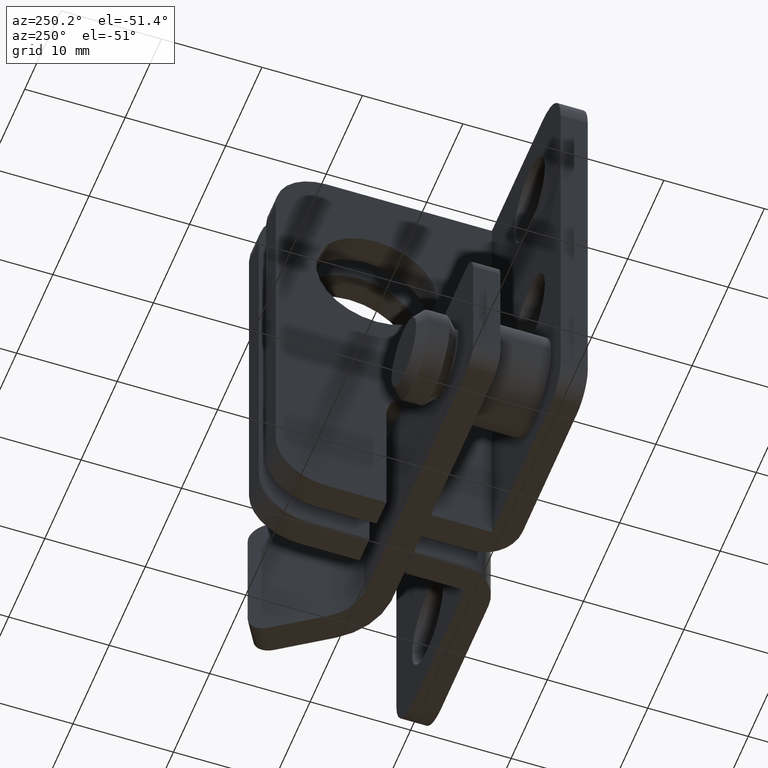
[diagram: clean part render]
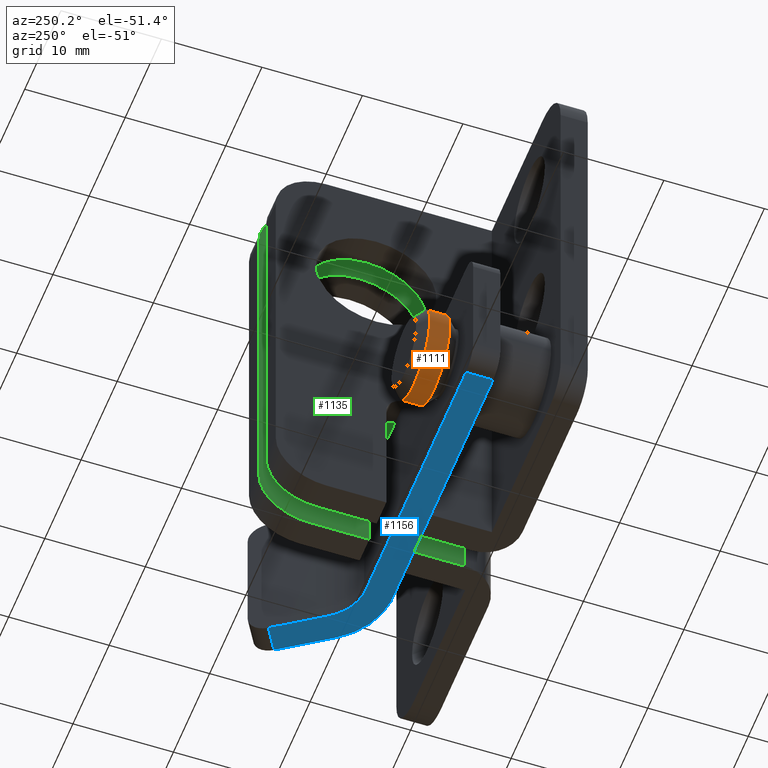
[diagram: same view with three faces highlighted in distinct colors, each labeled with its STEP entity id]
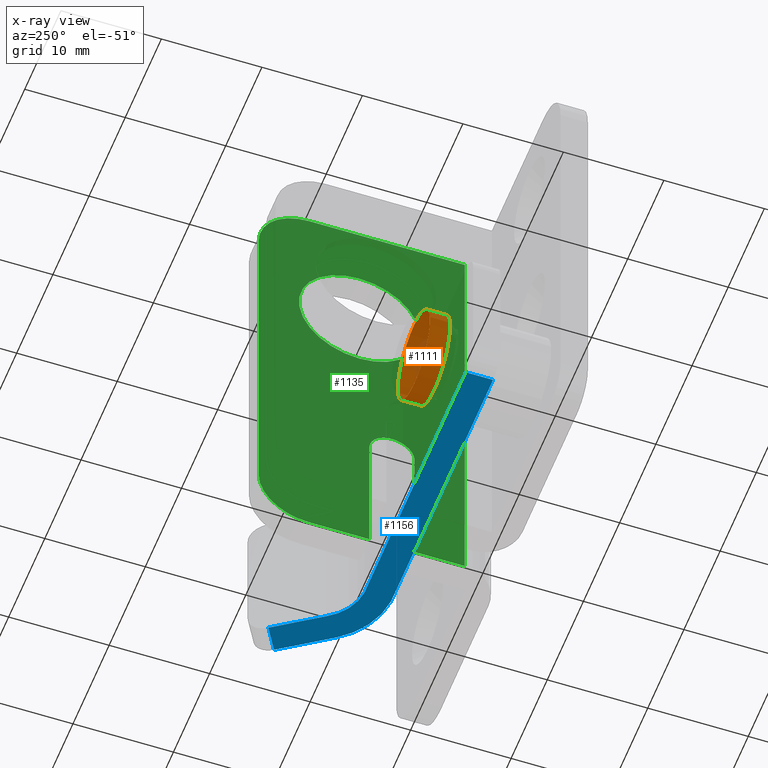
[diagram: x-ray of the same camera — body ghosted, the three highlighted faces saturated]
A machine part, auxiliary view with three faces highlighted in distinct colors.
The next image is the same camera in x-ray (body ghosted, the three faces saturated) — at least one of them is partly hidden behind the body in this view.
Their STEP definitions:

[orange] entity #1111 — the highlighted cylindrical surface (bore or boss wall) has radius 4.4 mm, axis along (0, -1, 0).
#52=FACE_BOUND('',#194,.T.);
#120=FACE_OUTER_BOUND('',#193,.T.);
#193=EDGE_LOOP('',(#809));
#194=EDGE_LOOP('',(#810));
#466=CIRCLE('',#1194,4.4);
#467=CIRCLE('',#1196,4.4);
#534=VERTEX_POINT('',#1725);
#535=VERTEX_POINT('',#1728);
#647=EDGE_CURVE('',#534,#534,#466,.T.);
#648=EDGE_CURVE('',#535,#535,#467,.T.);
#809=ORIENTED_EDGE('',*,*,#648,.F.);
#810=ORIENTED_EDGE('',*,*,#647,.F.);
#1076=CYLINDRICAL_SURFACE('',#1195,4.4);
#1111=ADVANCED_FACE('',(#120,#52),#1076,.T.);
#1194=AXIS2_PLACEMENT_3D('',#1726,#1368,#1369);
#1195=AXIS2_PLACEMENT_3D('',#1727,#1370,#1371);
#1196=AXIS2_PLACEMENT_3D('',#1729,#1372,#1373);
#1368=DIRECTION('center_axis',(0.,1.,-6.88510402868314E-16));
#1369=DIRECTION('ref_axis',(0.,-6.88510402868314E-16,-1.));
#1370=DIRECTION('center_axis',(0.,-1.,6.88510402868314E-16));
#1371=DIRECTION('ref_axis',(0.,6.88510402868314E-16,1.));
#1372=DIRECTION('center_axis',(0.,-1.,6.88510402868314E-16));
#1373=DIRECTION('ref_axis',(0.,-6.88510402868314E-16,-1.));
#1725=CARTESIAN_POINT('',(7.5,14.6,-32.8));
#1726=CARTESIAN_POINT('Origin',(7.5,14.6,-37.2));
#1727=CARTESIAN_POINT('Origin',(7.5,13.6,-37.2));
#1728=CARTESIAN_POINT('',(7.5,12.6,-32.8));
#1729=CARTESIAN_POINT('Origin',(7.5,12.6,-37.2));

[blue] entity #1156 — the highlighted planar face has unit normal (0, -0, 1).
#103=PLANE('',#1281);
#165=FACE_OUTER_BOUND('',#261,.T.);
#261=EDGE_LOOP('',(#1016,#1017,#1018,#1019,#1020,#1021,#1022,#1023));
#346=LINE('',#1937,#436);
#347=LINE('',#1941,#437);
#348=LINE('',#1947,#438);
#349=LINE('',#1949,#439);
#350=LINE('',#1951,#440);
#351=LINE('',#1954,#441);
#436=VECTOR('',#1594,5.99949013200361);
#437=VECTOR('',#1599,2.7096863287104);
#438=VECTOR('',#1606,28.2);
#439=VECTOR('',#1607,2.7);
#440=VECTOR('',#1608,28.0910992921222);
#441=VECTOR('',#1611,5.61319085248344);
#502=CIRCLE('',#1282,7.69999999999999);
#503=CIRCLE('',#1283,5.00000000000002);
#602=VERTEX_POINT('',#1934);
#603=VERTEX_POINT('',#1936);
#604=VERTEX_POINT('',#1940);
#605=VERTEX_POINT('',#1944);
#606=VERTEX_POINT('',#1946);
#607=VERTEX_POINT('',#1948);
#608=VERTEX_POINT('',#1950);
#609=VERTEX_POINT('',#1952);
#743=EDGE_CURVE('',#603,#602,#346,.T.);
#745=EDGE_CURVE('',#603,#604,#347,.T.);
#747=EDGE_CURVE('',#602,#605,#502,.T.);
#748=EDGE_CURVE('',#605,#606,#348,.T.);
#749=EDGE_CURVE('',#607,#606,#349,.T.);
#750=EDGE_CURVE('',#607,#608,#350,.T.);
#751=EDGE_CURVE('',#608,#609,#503,.T.);
#752=EDGE_CURVE('',#609,#604,#351,.T.);
#1016=ORIENTED_EDGE('',*,*,#745,.F.);
#1017=ORIENTED_EDGE('',*,*,#743,.T.);
#1018=ORIENTED_EDGE('',*,*,#747,.T.);
#1019=ORIENTED_EDGE('',*,*,#748,.T.);
#1020=ORIENTED_EDGE('',*,*,#749,.F.);
#1021=ORIENTED_EDGE('',*,*,#750,.T.);
#1022=ORIENTED_EDGE('',*,*,#751,.T.);
#1023=ORIENTED_EDGE('',*,*,#752,.T.);
#1156=ADVANCED_FACE('',(#165),#103,.F.);
#1281=AXIS2_PLACEMENT_3D('',#1943,#1602,#1603);
#1282=AXIS2_PLACEMENT_3D('',#1945,#1604,#1605);
#1283=AXIS2_PLACEMENT_3D('',#1953,#1609,#1610);
#1594=DIRECTION('',(-0.559794073334461,-0.828631761073405,0.));
#1599=DIRECTION('',(-0.856187661065607,0.516664967884417,0.));
#1602=DIRECTION('center_axis',(0.,0.,1.));
#1603=DIRECTION('ref_axis',(1.,0.,0.));
#1604=DIRECTION('center_axis',(0.,0.,-1.));
#1605=DIRECTION('ref_axis',(0.0727272727272729,-0.997351865592907,0.));
#1606=DIRECTION('',(-1.,0.,0.));
#1607=DIRECTION('',(3.06161699786838E-16,-1.,0.));
#1608=DIRECTION('',(1.,1.29133886019423E-16,0.));
#1609=DIRECTION('center_axis',(0.,0.,1.));
#1610=DIRECTION('ref_axis',(-0.0902198584244346,0.995921873013077,0.));
#1611=DIRECTION('',(0.559794073334461,0.828631761073405,0.));
#1934=CARTESIAN_POINT('',(36.0204645602652,3.36919500039002,-15.5));
#1936=CARTESIAN_POINT('',(39.3789435791894,8.34056307401468,-15.5));
#1937=CARTESIAN_POINT('',(36.0204645602652,3.36919500039002,-15.5));
#1940=CARTESIAN_POINT('',(37.0589435791894,9.74056307401468,-15.5));
#1941=CARTESIAN_POINT('',(32.7272244328156,12.3545315244127,-15.5));
#1943=CARTESIAN_POINT('Origin',(20.9134016220032,2.76789904509888,-15.5));
#1944=CARTESIAN_POINT('',(30.2,0.,-15.5));
#1945=CARTESIAN_POINT('Origin',(29.64,7.67960936506538,-15.5));
#1946=CARTESIAN_POINT('',(2.,0.,-15.5));
#1947=CARTESIAN_POINT('',(0.,0.,-15.5));
#1948=CARTESIAN_POINT('',(2.,2.7,-15.5));
#1949=CARTESIAN_POINT('',(2.,1.38394952254944,-15.5));
#1950=CARTESIAN_POINT('',(30.0910992921222,2.7,-15.5));
#1951=CARTESIAN_POINT('',(30.0910992921222,2.7,-15.5));
#1952=CARTESIAN_POINT('',(33.916712607474,5.0892948526802,-15.5));
#1953=CARTESIAN_POINT('Origin',(29.64,7.6796093650654,-15.5));
#1954=CARTESIAN_POINT('',(38.18,11.4,-15.5));

[green] entity #1135 — the highlighted planar face has unit normal (-1, -0, 0).
#64=FACE_BOUND('',#230,.T.);
#94=PLANE('',#1238);
#144=FACE_OUTER_BOUND('',#229,.T.);
#229=EDGE_LOOP('',(#915,#916,#917,#918,#919,#920,#921,#922,#923,#924));
#230=EDGE_LOOP('',(#925));
#306=LINE('',#1800,#396);
#311=LINE('',#1814,#401);
#318=LINE('',#1834,#408);
#319=LINE('',#1837,#409);
#322=LINE('',#1843,#412);
#323=LINE('',#1845,#413);
#324=LINE('',#1849,#414);
#396=VECTOR('',#1454,13.75);
#401=VECTOR('',#1467,13.75);
#408=VECTOR('',#1484,5.);
#409=VECTOR('',#1487,6.);
#412=VECTOR('',#1492,45.2);
#413=VECTOR('',#1493,15.5);
#414=VECTOR('',#1496,35.2);
#480=CIRCLE('',#1229,2.25);
#482=CIRCLE('',#1233,6.);
#485=CIRCLE('',#1239,5.);
#486=CIRCLE('',#1240,5.);
#555=VERTEX_POINT('',#1798);
#556=VERTEX_POINT('',#1799);
#559=VERTEX_POINT('',#1807);
#561=VERTEX_POINT('',#1813);
#563=VERTEX_POINT('',#1819);
#569=VERTEX_POINT('',#1832);
#570=VERTEX_POINT('',#1836);
#572=VERTEX_POINT('',#1842);
#573=VERTEX_POINT('',#1844);
#574=VERTEX_POINT('',#1846);
#575=VERTEX_POINT('',#1848);
#679=EDGE_CURVE('',#555,#556,#306,.T.);
#683=EDGE_CURVE('',#556,#559,#480,.T.);
#686=EDGE_CURVE('',#559,#561,#311,.T.);
#689=EDGE_CURVE('',#563,#563,#482,.T.);
#696=EDGE_CURVE('',#569,#561,#318,.T.);
#697=EDGE_CURVE('',#555,#570,#319,.T.);
#700=EDGE_CURVE('',#572,#569,#322,.T.);
#701=EDGE_CURVE('',#573,#572,#323,.T.);
#702=EDGE_CURVE('',#574,#573,#485,.T.);
#703=EDGE_CURVE('',#574,#575,#324,.T.);
#704=EDGE_CURVE('',#570,#575,#486,.T.);
#915=ORIENTED_EDGE('',*,*,#679,.T.);
#916=ORIENTED_EDGE('',*,*,#683,.T.);
#917=ORIENTED_EDGE('',*,*,#686,.T.);
#918=ORIENTED_EDGE('',*,*,#696,.F.);
#919=ORIENTED_EDGE('',*,*,#700,.F.);
#920=ORIENTED_EDGE('',*,*,#701,.F.);
#921=ORIENTED_EDGE('',*,*,#702,.F.);
#922=ORIENTED_EDGE('',*,*,#703,.T.);
#923=ORIENTED_EDGE('',*,*,#704,.F.);
#924=ORIENTED_EDGE('',*,*,#697,.F.);
#925=ORIENTED_EDGE('',*,*,#689,.T.);
#1135=ADVANCED_FACE('',(#144,#64),#94,.T.);
#1229=AXIS2_PLACEMENT_3D('',#1808,#1460,#1461);
#1233=AXIS2_PLACEMENT_3D('',#1820,#1472,#1473);
#1238=AXIS2_PLACEMENT_3D('',#1841,#1490,#1491);
#1239=AXIS2_PLACEMENT_3D('',#1847,#1494,#1495);
#1240=AXIS2_PLACEMENT_3D('',#1850,#1497,#1498);
#1454=DIRECTION('',(0.,0.,1.));
#1460=DIRECTION('center_axis',(1.,7.9602041944578E-16,0.));
#1461=DIRECTION('ref_axis',(-3.70074341541719E-16,1.,0.));
#1467=DIRECTION('',(-1.28546937853161E-31,1.61486985400023E-16,-1.));
#1472=DIRECTION('center_axis',(1.,7.9602041944578E-16,0.));
#1473=DIRECTION('ref_axis',(0.,0.,1.));
#1484=DIRECTION('',(-7.9602041944578E-16,1.,0.));
#1487=DIRECTION('',(-7.9602041944578E-16,1.,0.));
#1490=DIRECTION('center_axis',(-1.,-7.9602041944578E-16,0.));
#1491=DIRECTION('ref_axis',(-7.9602041944578E-16,1.,0.));
#1492=DIRECTION('',(0.,0.,-1.));
#1493=DIRECTION('',(7.9602041944578E-16,-1.,0.));
#1494=DIRECTION('center_axis',(1.,7.9602041944578E-16,0.));
#1495=DIRECTION('ref_axis',(0.,0.707106781186547,0.707106781186547));
#1496=DIRECTION('',(0.,0.,-1.));
#1497=DIRECTION('center_axis',(1.,7.9602041944578E-16,0.));
#1498=DIRECTION('ref_axis',(0.,0.707106781186547,-0.707106781186547));
#1798=CARTESIAN_POINT('',(-1.0547118733939E-14,13.2,-45.2));
#1799=CARTESIAN_POINT('',(-1.0547118733939E-14,13.2,-31.45));
#1800=CARTESIAN_POINT('',(-1.0547118733939E-14,13.2,-15.725));
#1807=CARTESIAN_POINT('',(-6.66133814775094E-15,8.7,-31.45));
#1808=CARTESIAN_POINT('Origin',(-3.88578058618805E-15,10.95,-31.45));
#1813=CARTESIAN_POINT('',(-6.66133814775094E-15,8.7,-45.2));
#1814=CARTESIAN_POINT('',(-6.93889390390723E-15,8.7,-22.6));
#1819=CARTESIAN_POINT('',(-1.0547118733939E-14,14.2,-18.5));
#1820=CARTESIAN_POINT('Origin',(-1.0547118733939E-14,14.2,-12.5));
#1832=CARTESIAN_POINT('',(-2.94527555194938E-15,3.7,-45.2));
#1834=CARTESIAN_POINT('',(-1.92636941505879E-14,24.2,-45.2));
#1836=CARTESIAN_POINT('',(-1.5283592053359E-14,19.2,-45.2));
#1837=CARTESIAN_POINT('',(-1.92636941505879E-14,24.2,-45.2));
#1841=CARTESIAN_POINT('Origin',(0.,0.,0.));
#1842=CARTESIAN_POINT('',(-2.94527555194938E-15,3.7,0.));
#1843=CARTESIAN_POINT('',(-2.77555756156289E-15,3.7,0.));
#1844=CARTESIAN_POINT('',(-1.5283592053359E-14,19.2,0.));
#1845=CARTESIAN_POINT('',(-1.92636941505879E-14,24.2,0.));
#1846=CARTESIAN_POINT('',(-1.92636941505879E-14,24.2,-5.));
#1847=CARTESIAN_POINT('Origin',(0.,19.2,-5.));
#1848=CARTESIAN_POINT('',(-1.92636941505879E-14,24.2,-40.2));
#1849=CARTESIAN_POINT('',(-1.92636941505879E-14,24.2,0.));
#1850=CARTESIAN_POINT('Origin',(0.,19.2,-40.2));